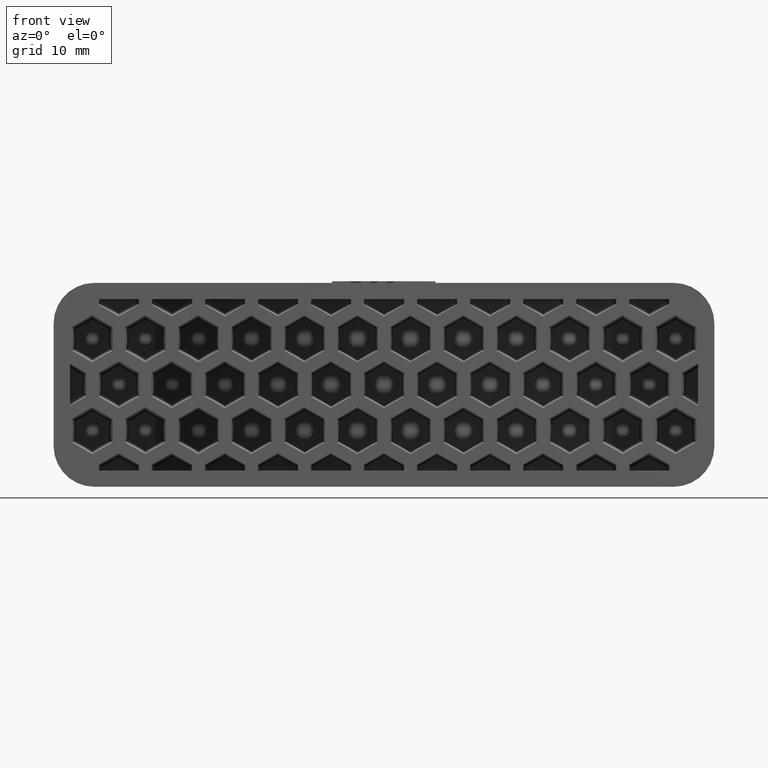
[diagram: clean part render]
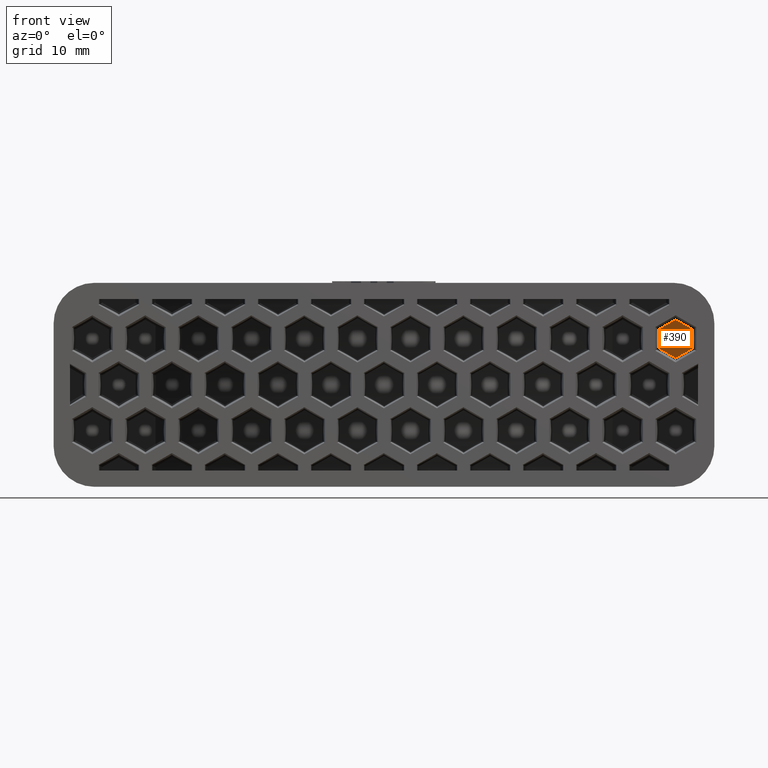
[diagram: same view with one face highlighted and labeled with its STEP entity id]
A machine part, front view. The second image highlights one B-rep face of the part: STEP entity #390.
In plain terms, the highlighted planar face has unit normal (0, 1, 0).
Its self-contained STEP definition (entity closure, byte-faithful):
#390 = ADVANCED_FACE( '', ( #1230 ), #1231, .F. );
#1230 = FACE_OUTER_BOUND( '', #2214, .T. );
#1231 = PLANE( '', #2215 );
#2214 = EDGE_LOOP( '', ( #5112, #5113, #5114, #5115, #5116, #5117 ) );
#2215 = AXIS2_PLACEMENT_3D( '', #5118, #5119, #5120 );
#5112 = ORIENTED_EDGE( '', *, *, #7191, .T. );
#5113 = ORIENTED_EDGE( '', *, *, #7192, .T. );
#5114 = ORIENTED_EDGE( '', *, *, #7193, .T. );
#5115 = ORIENTED_EDGE( '', *, *, #7194, .T. );
#5116 = ORIENTED_EDGE( '', *, *, #7195, .T. );
#5117 = ORIENTED_EDGE( '', *, *, #7196, .T. );
#5118 = CARTESIAN_POINT( '', ( 38.5000000000000, 26.0000000000000, -108.795482674905 ) );
#5119 = DIRECTION( '', ( 0.000000000000000, 1.00000000000000, 0.000000000000000 ) );
#5120 = DIRECTION( '', ( -1.00000000000000, 0.000000000000000, 0.000000000000000 ) );
#7191 = EDGE_CURVE( '', #9035, #9036, #9037, .T. );
#7192 = EDGE_CURVE( '', #9036, #9038, #9039, .T. );
#7193 = EDGE_CURVE( '', #9038, #9040, #9041, .T. );
#7194 = EDGE_CURVE( '', #9040, #9042, #9043, .T. );
#7195 = EDGE_CURVE( '', #9042, #9044, #9045, .T. );
#7196 = EDGE_CURVE( '', #9044, #9035, #9046, .T. );
#9035 = VERTEX_POINT( '', #11765 );
#9036 = VERTEX_POINT( '', #11766 );
#9037 = LINE( '', #11767, #11768 );
#9038 = VERTEX_POINT( '', #11769 );
#9039 = LINE( '', #11770, #11771 );
#9040 = VERTEX_POINT( '', #11772 );
#9041 = LINE( '', #11773, #11774 );
#9042 = VERTEX_POINT( '', #11775 );
#9043 = LINE( '', #11776, #11777 );
#9044 = VERTEX_POINT( '', #11778 );
#9045 = LINE( '', #11779, #11780 );
#9046 = LINE( '', #11781, #11782 );
#11765 = CARTESIAN_POINT( '', ( 35.7500000000000, 26.0000000000000, 3.26645347327223 ) );
#11766 = CARTESIAN_POINT( '', ( 37.7961683118664, 26.0000000000000, 4.44780929893554 ) );
#11767 = CARTESIAN_POINT( '', ( -10.7270588461642, 26.0000000000000, -23.5670889627028 ) );
#11768 = VECTOR( '', #13539, 1000.00000000000 );
#11769 = CARTESIAN_POINT( '', ( 37.7961683118664, 26.0000000000000, 6.81052095026216 ) );
#11770 = CARTESIAN_POINT( '', ( 37.7961683118664, 26.0000000000000, 9.81462432702589 ) );
#11771 = VECTOR( '', #13540, 1000.00000000000 );
#11772 = CARTESIAN_POINT( '', ( 35.7500000000000, 26.0000000000000, 7.99187677592549 ) );
#11773 = CARTESIAN_POINT( '', ( -14.3517728419694, 26.0000000000000, 36.9181488131140 ) );
#11774 = VECTOR( '', #13541, 1000.00000000000 );
#11775 = CARTESIAN_POINT( '', ( 33.7038316881337, 26.0000000000000, 6.81052095026215 ) );
#11776 = CARTESIAN_POINT( '', ( -12.7732271580305, 26.0000000000000, -20.0230214857128 ) );
#11777 = VECTOR( '', #13542, 1000.00000000000 );
#11778 = CARTESIAN_POINT( '', ( 33.7038316881337, 26.0000000000000, 4.44780929893555 ) );
#11779 = CARTESIAN_POINT( '', ( 33.7038316881337, 26.0000000000000, 9.81462432702594 ) );
#11780 = VECTOR( '', #13543, 1000.00000000000 );
#11781 = CARTESIAN_POINT( '', ( -16.3979411538358, 26.0000000000000, 33.3740813361241 ) );
#11782 = VECTOR( '', #13544, 1000.00000000000 );
#13539 = DIRECTION( '', ( 0.866025403784439, 0.000000000000000, 0.500000000000000 ) );
#13540 = DIRECTION( '', ( 6.66133814775094E-016, 6.84331992860751E-049, 1.00000000000000 ) );
#13541 = DIRECTION( '', ( -0.866025403784438, 0.000000000000000, 0.500000000000000 ) );
#13542 = DIRECTION( '', ( -0.866025403784438, 0.000000000000000, -0.500000000000000 ) );
#13543 = DIRECTION( '', ( 5.55111512312579E-017, 0.000000000000000, -1.00000000000000 ) );
#13544 = DIRECTION( '', ( 0.866025403784439, 0.000000000000000, -0.500000000000000 ) );